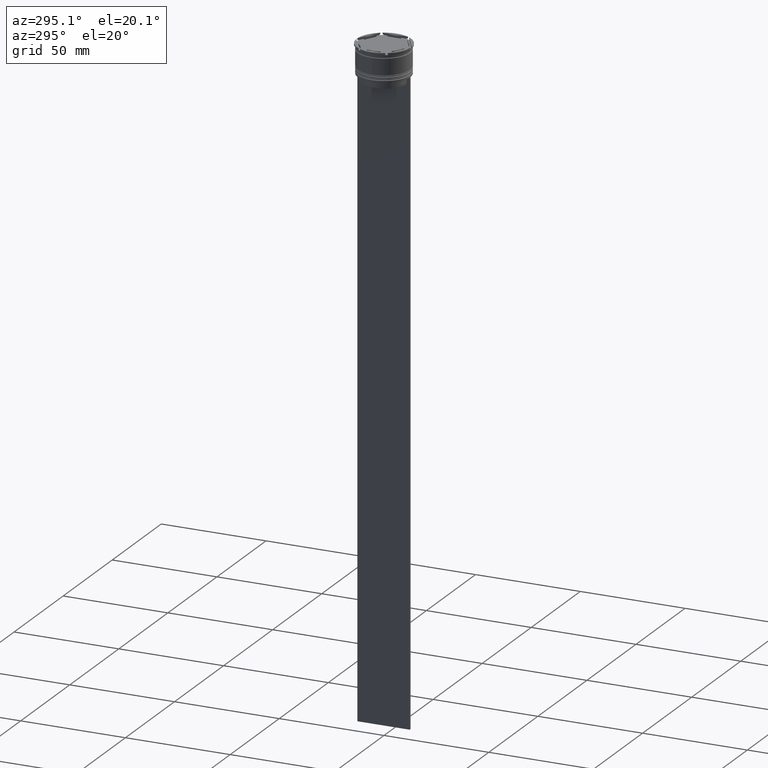
[diagram: clean part render]
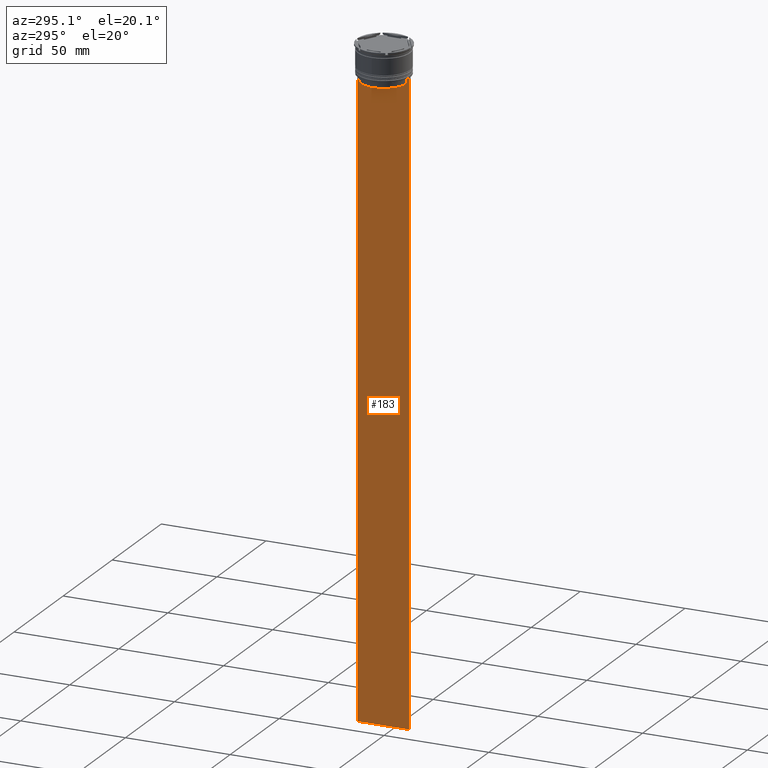
[diagram: same view with one face highlighted and labeled with its STEP entity id]
A machine part, auxiliary view. The second image highlights one B-rep face of the part: STEP entity #183.
In plain terms, the highlighted planar face has unit normal (-1, 0, 0).
Its self-contained STEP definition (entity closure, byte-faithful):
#33 = CARTESIAN_POINT ( 'NONE',  ( -0.5000000000000000000, 12.50000000000000711, -14.00000000000000178 ) ) ;
#40 = EDGE_CURVE ( 'NONE', #2269, #91, #1312, .T. ) ;
#41 = CARTESIAN_POINT ( 'NONE',  ( -0.5000000000000000000, -12.49999999999999289, -14.00000000000000178 ) ) ;
#52 = CARTESIAN_POINT ( 'NONE',  ( -0.5000000000000000000, -12.49999999999999289, 11.01999200639360765 ) ) ;
#72 = CARTESIAN_POINT ( 'NONE',  ( -0.5000000000000000000, 10.88852607105296322, -14.50000000000000000 ) ) ;
#89 = CARTESIAN_POINT ( 'NONE',  ( -0.5000000000000000000, -12.49999999999999289, -314.0000000000000000 ) ) ;
#91 = VERTEX_POINT ( 'NONE', #1289 ) ;
#126 = DIRECTION ( 'NONE',  ( 0.000000000000000000, -1.000000000000000000, 0.000000000000000000 ) ) ;
#171 = CARTESIAN_POINT ( 'NONE',  ( -0.5000000000000000000, 10.88852607105296144, -17.00000000000000000 ) ) ;
#183 = ADVANCED_FACE ( 'NONE', ( #476 ), #2884, .T. ) ;
#190 = VECTOR ( 'NONE', #411, 1000.000000000000000 ) ;
#227 = CARTESIAN_POINT ( 'NONE',  ( -0.5000000000000000000, -11.05536450423839234, -14.33333718996393102 ) ) ;
#243 = VERTEX_POINT ( 'NONE', #41 ) ;
#303 = CARTESIAN_POINT ( 'NONE',  ( -0.5000000000000000000, 10.88852607105296322, -14.50000000000000000 ) ) ;
#324 = EDGE_CURVE ( 'NONE', #2269, #1143, #335, .T. ) ;
#330 = CARTESIAN_POINT ( 'NONE',  ( -0.5000000000000000000, -11.38902980942626719, -14.00000000000000178 ) ) ;
#335 = LINE ( 'NONE', #774, #1187 ) ;
#385 = CARTESIAN_POINT ( 'NONE',  ( -0.5000000000000000000, 10.88852607105296322, 0.000000000000000000 ) ) ;
#411 = DIRECTION ( 'NONE',  ( 0.000000000000000000, 0.000000000000000000, -1.000000000000000000 ) ) ;
#421 = VERTEX_POINT ( 'NONE', #1301 ) ;
#430 = CARTESIAN_POINT ( 'NONE',  ( -0.5000000000000000000, 12.38991525394746773, -14.00000000000000178 ) ) ;
#446 = EDGE_CURVE ( 'NONE', #2615, #2774, #1969, .T. ) ;
#476 = FACE_OUTER_BOUND ( 'NONE', #1010, .T. ) ;
#523 = CARTESIAN_POINT ( 'NONE',  ( -0.5000000000000000000, 11.38902980942626719, -14.00000000000000178 ) ) ;
#526 = ORIENTED_EDGE ( 'NONE', *, *, #849, .F. ) ;
#533 = LINE ( 'NONE', #1609, #1792 ) ;
#708 = EDGE_CURVE ( 'NONE', #2785, #2415, #846, .T. ) ;
#720 = VECTOR ( 'NONE', #1519, 1000.000000000000000 ) ;
#774 = CARTESIAN_POINT ( 'NONE',  ( -0.5000000000000000000, -12.49999999999999289, -14.00000000000000178 ) ) ;
#800 = VERTEX_POINT ( 'NONE', #2638 ) ;
#840 = DIRECTION ( 'NONE',  ( 0.000000000000000000, -1.000000000000000000, 0.000000000000000000 ) ) ;
#846 = LINE ( 'NONE', #2620, #1459 ) ;
#849 = EDGE_CURVE ( 'NONE', #800, #2783, #1829, .T. ) ;
#921 = DIRECTION ( 'NONE',  ( 0.000000000000000000, -1.000000000000000000, 0.000000000000000000 ) ) ;
#1002 = DIRECTION ( 'NONE',  ( 0.000000000000000000, 1.000000000000000000, 0.000000000000000000 ) ) ;
#1010 = EDGE_LOOP ( 'NONE', ( #526, #2084, #2703, #2749, #2291, #2256, #1893, #2008, #1638, #2080, #2726, #2575 ) ) ;
#1014 = EDGE_CURVE ( 'NONE', #1143, #800, #1380, .T. ) ;
#1029 = VECTOR ( 'NONE', #921, 1000.000000000000000 ) ;
#1085 = EDGE_CURVE ( 'NONE', #243, #421, #1857, .T. ) ;
#1103 = AXIS2_PLACEMENT_3D ( 'NONE', #1790, #1815, #2453 ) ;
#1136 = CARTESIAN_POINT ( 'NONE',  ( -0.5000000000000000000, -11.22219891450652973, -14.16667035398018903 ) ) ;
#1143 = VERTEX_POINT ( 'NONE', #430 ) ;
#1187 = VECTOR ( 'NONE', #2126, 1000.000000000000000 ) ;
#1214 = DIRECTION ( 'NONE',  ( 0.000000000000000000, 0.000000000000000000, -1.000000000000000000 ) ) ;
#1289 = CARTESIAN_POINT ( 'NONE',  ( -0.5000000000000000000, 12.50000000000000711, -314.0000000000000000 ) ) ;
#1301 = CARTESIAN_POINT ( 'NONE',  ( -0.5000000000000000000, -12.49999999999999289, -314.0000000000000000 ) ) ;
#1312 = LINE ( 'NONE', #2408, #190 ) ;
#1379 = CARTESIAN_POINT ( 'NONE',  ( -0.5000000000000000000, 11.05536450345590538, -14.33333719074559376 ) ) ;
#1380 = LINE ( 'NONE', #2259, #1977 ) ;
#1381 = CARTESIAN_POINT ( 'NONE',  ( -0.5000000000000000000, -12.38991525394746773, -14.00000000000000178 ) ) ;
#1386 = CARTESIAN_POINT ( 'NONE',  ( -0.5000000000000000000, -10.88852607105296322, -14.50000000000000000 ) ) ;
#1396 = CARTESIAN_POINT ( 'NONE',  ( -0.5000000000000000000, -11.38902980942626719, -14.00000000000000178 ) ) ;
#1459 = VECTOR ( 'NONE', #126, 1000.000000000000000 ) ;
#1519 = DIRECTION ( 'NONE',  ( 0.000000000000000000, 0.000000000000000000, -1.000000000000000000 ) ) ;
#1526 = EDGE_CURVE ( 'NONE', #2415, #243, #533, .T. ) ;
#1608 = LINE ( 'NONE', #2446, #1029 ) ;
#1609 = CARTESIAN_POINT ( 'NONE',  ( -0.5000000000000000000, -12.49999999999999289, -14.00000000000000178 ) ) ;
#1638 = ORIENTED_EDGE ( 'NONE', *, *, #2694, .F. ) ;
#1790 = CARTESIAN_POINT ( 'NONE',  ( -0.5000000000000000000, -12.49999999999999289, 11.01999200639360765 ) ) ;
#1792 = VECTOR ( 'NONE', #2754, 1000.000000000000000 ) ;
#1815 = DIRECTION ( 'NONE',  ( -1.000000000000000000, 0.000000000000000000, 0.000000000000000000 ) ) ;
#1829 = B_SPLINE_CURVE_WITH_KNOTS ( 'NONE', 3,
 ( #523, #1873, #1379, #303 ),
 .UNSPECIFIED., .F., .F.,
 ( 4, 4 ),
 ( 0.01935560801904634073, 0.02006307108468586772 ),
 .UNSPECIFIED. ) ;
#1857 = LINE ( 'NONE', #52, #2706 ) ;
#1873 = CARTESIAN_POINT ( 'NONE',  ( -0.5000000000000000000, 11.22219891375843304, -14.16667035472756808 ) ) ;
#1886 = VECTOR ( 'NONE', #2144, 1000.000000000000000 ) ;
#1893 = ORIENTED_EDGE ( 'NONE', *, *, #1526, .F. ) ;
#1960 = EDGE_CURVE ( 'NONE', #2783, #2548, #2367, .T. ) ;
#1969 = LINE ( 'NONE', #2829, #1886 ) ;
#1977 = VECTOR ( 'NONE', #840, 1000.000000000000000 ) ;
#1979 = VECTOR ( 'NONE', #1002, 1000.000000000000000 ) ;
#2008 = ORIENTED_EDGE ( 'NONE', *, *, #708, .F. ) ;
#2029 = CARTESIAN_POINT ( 'NONE',  ( -0.5000000000000000000, -10.88852607105296322, -14.50000000000000000 ) ) ;
#2080 = ORIENTED_EDGE ( 'NONE', *, *, #446, .F. ) ;
#2084 = ORIENTED_EDGE ( 'NONE', *, *, #1014, .F. ) ;
#2091 = LINE ( 'NONE', #89, #1979 ) ;
#2126 = DIRECTION ( 'NONE',  ( 0.000000000000000000, -1.000000000000000000, 0.000000000000000000 ) ) ;
#2144 = DIRECTION ( 'NONE',  ( -0.000000000000000000, -0.000000000000000000, 1.000000000000000000 ) ) ;
#2165 = B_SPLINE_CURVE_WITH_KNOTS ( 'NONE', 3,
 ( #1386, #227, #1136, #1396 ),
 .UNSPECIFIED., .F., .F.,
 ( 4, 4 ),
 ( 0.05041323384703226551, 0.05112713601261605068 ),
 .UNSPECIFIED. ) ;
#2256 = ORIENTED_EDGE ( 'NONE', *, *, #1085, .F. ) ;
#2259 = CARTESIAN_POINT ( 'NONE',  ( -0.5000000000000000000, -12.49999999999999289, -14.00000000000000178 ) ) ;
#2269 = VERTEX_POINT ( 'NONE', #33 ) ;
#2291 = ORIENTED_EDGE ( 'NONE', *, *, #2503, .F. ) ;
#2367 = LINE ( 'NONE', #385, #720 ) ;
#2408 = CARTESIAN_POINT ( 'NONE',  ( -0.5000000000000000000, 12.50000000000000711, 11.01999200639360765 ) ) ;
#2415 = VERTEX_POINT ( 'NONE', #1381 ) ;
#2428 = CARTESIAN_POINT ( 'NONE',  ( -0.5000000000000000000, -10.88852607105296144, -17.00000000000000000 ) ) ;
#2446 = CARTESIAN_POINT ( 'NONE',  ( -0.5000000000000000000, 10.90000000000000213, -17.00000000000000000 ) ) ;
#2453 = DIRECTION ( 'NONE',  ( 0.000000000000000000, 0.000000000000000000, 1.000000000000000000 ) ) ;
#2503 = EDGE_CURVE ( 'NONE', #421, #91, #2091, .T. ) ;
#2548 = VERTEX_POINT ( 'NONE', #171 ) ;
#2575 = ORIENTED_EDGE ( 'NONE', *, *, #1960, .F. ) ;
#2615 = VERTEX_POINT ( 'NONE', #2428 ) ;
#2620 = CARTESIAN_POINT ( 'NONE',  ( -0.5000000000000000000, -12.49999999999999289, -14.00000000000000178 ) ) ;
#2638 = CARTESIAN_POINT ( 'NONE',  ( -0.5000000000000000000, 11.38902980942626719, -14.00000000000000178 ) ) ;
#2694 = EDGE_CURVE ( 'NONE', #2774, #2785, #2165, .T. ) ;
#2703 = ORIENTED_EDGE ( 'NONE', *, *, #324, .F. ) ;
#2706 = VECTOR ( 'NONE', #1214, 1000.000000000000000 ) ;
#2726 = ORIENTED_EDGE ( 'NONE', *, *, #2734, .F. ) ;
#2734 = EDGE_CURVE ( 'NONE', #2548, #2615, #1608, .T. ) ;
#2749 = ORIENTED_EDGE ( 'NONE', *, *, #40, .T. ) ;
#2754 = DIRECTION ( 'NONE',  ( 0.000000000000000000, -1.000000000000000000, 0.000000000000000000 ) ) ;
#2774 = VERTEX_POINT ( 'NONE', #2029 ) ;
#2783 = VERTEX_POINT ( 'NONE', #72 ) ;
#2785 = VERTEX_POINT ( 'NONE', #330 ) ;
#2829 = CARTESIAN_POINT ( 'NONE',  ( -0.5000000000000000000, -10.88852607105296322, 0.000000000000000000 ) ) ;
#2884 = PLANE ( 'NONE',  #1103 ) ;